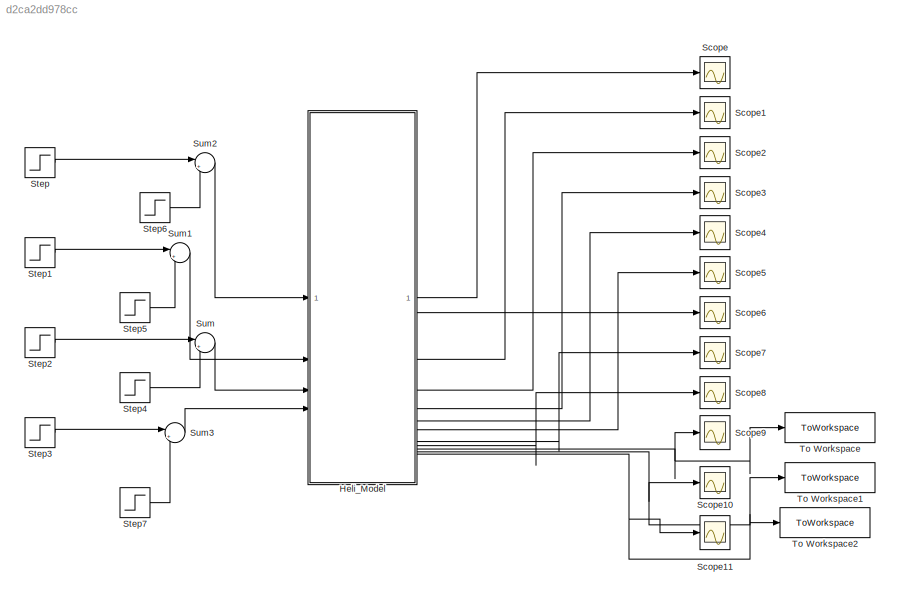
MODEL slx_d2ca2dd978cc
KIND model
CONFIG AbsTol = auto
CONFIG EnableMultiTasking = off
CONFIG FixedStep = auto
CONFIG MaxStep = auto
CONFIG MinStep = auto
CONFIG RelTol = 1e-3
CONFIG SampleTimeConstraint = Unconstrained
CONFIG SolverName = ode45
CONFIG StartTime = 0.0
CONFIG StopTime = 10
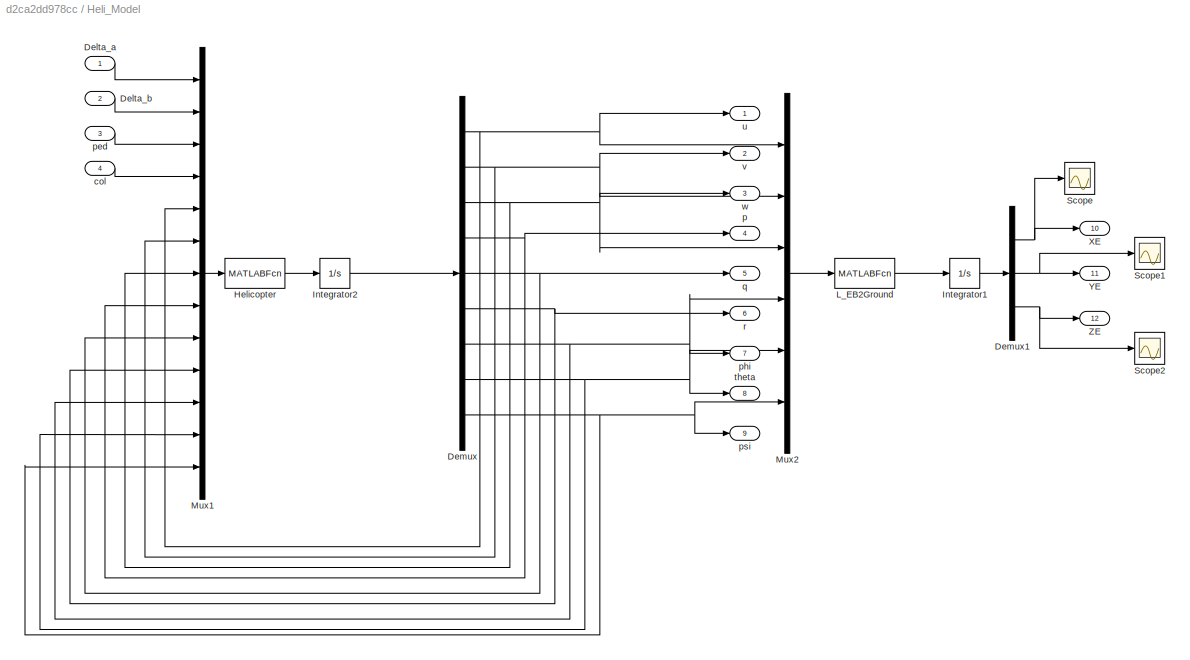
BLOCK [SubSystem] Heli_Model
BLOCK [Inport] Heli_Model/Delta_a
BLOCK [Inport] Heli_Model/Delta_b
  Port = 2
BLOCK [Demux] Heli_Model/Demux
  Outputs = 9
BLOCK [Demux] Heli_Model/Demux1
  Outputs = 3
BLOCK [MATLABFcn] Heli_Model/Helicopter
  MATLABFcn = F500Model
BLOCK [Integrator] Heli_Model/Integrator1
  InitialCondition = [20 10 20]
BLOCK [Integrator] Heli_Model/Integrator2
  InitialCondition = [0 0 0 0 0 0 0 0 0]
BLOCK [MATLABFcn] Heli_Model/L_EB2Ground
  MATLABFcn = L_EB2Ground
BLOCK [Mux] Heli_Model/Mux1
  DisplayOption = bar
  Inputs = 13
BLOCK [Mux] Heli_Model/Mux2
  DisplayOption = bar
  Inputs = 6
BLOCK [Scope] Heli_Model/Scope
  Floating = off
  NumInputPorts = 1
  ScopeSpecificationString = C++SS(StrPVP('Location','[5, 57, 1371, 735]'),StrPVP('Open','off'),MxPVP('AxesTitles',54,'struct(''axes1'',''%<SignalLabel>'')'),StrPVP('SaveName','ScopeData2'),StrPVP('DataFormat','StructureWithTime'),StrPVP('BlockParamSampleTime','0'),StrPVP('LimitDataPoints','on'),StrPVP('Decimation','1'),StrPVP('BlockParamSampleInput','off'))
BLOCK [Scope] Heli_Model/Scope1
  Floating = off
  NumInputPorts = 1
  ScopeSpecificationString = C++SS(StrPVP('Location','[5, 55, 1371, 733]'),StrPVP('Open','off'),MxPVP('AxesTitles',54,'struct(''axes1'',''%<SignalLabel>'')'),StrPVP('SaveName','ScopeData3'),StrPVP('DataFormat','StructureWithTime'),StrPVP('LimitDataPoints','off'),StrPVP('BlockParamSampleTime','0'),StrPVP('Decimation','1'),StrPVP('BlockParamSampleInput','off'))
BLOCK [Scope] Heli_Model/Scope2
  Floating = off
  NumInputPorts = 1
  ScopeSpecificationString = C++SS(StrPVP('Location','[5, 55, 1371, 733]'),StrPVP('Open','off'),MxPVP('AxesTitles',54,'struct(''axes1'',''%<SignalLabel>'')'),StrPVP('SaveName','ScopeData4'),StrPVP('DataFormat','StructureWithTime'),StrPVP('LimitDataPoints','off'),StrPVP('BlockParamSampleTime','0'),StrPVP('Decimation','1'),StrPVP('BlockParamSampleInput','off'))
BLOCK [Outport] Heli_Model/XE
  Port = 10
BLOCK [Outport] Heli_Model/YE
  Port = 11
BLOCK [Outport] Heli_Model/ZE
  Port = 12
BLOCK [Inport] Heli_Model/col
  Port = 4
BLOCK [Outport] Heli_Model/p
  Port = 4
BLOCK [Inport] Heli_Model/ped
  Port = 3
BLOCK [Outport] Heli_Model/phi
  Port = 7
BLOCK [Outport] Heli_Model/psi
  Port = 9
BLOCK [Outport] Heli_Model/q
  Port = 5
BLOCK [Outport] Heli_Model/r
  Port = 6
BLOCK [Outport] Heli_Model/theta
  Port = 8
BLOCK [Outport] Heli_Model/u
BLOCK [Outport] Heli_Model/v
  Port = 2
BLOCK [Outport] Heli_Model/w
  Port = 3
BLOCK [Scope] Scope
  Floating = off
  NumInputPorts = 1
  ScopeSpecificationString = Simulink.scopes.TimeScopeBlockCfg('CurrentConfiguration', extmgr.ConfigurationSet(extmgr.Configuration('Core','General UI',true),extmgr.Configuration('Core','Source UI',true),extmgr.Configuration('Sources','WiredSimulink',true,'DataLoggingVariableName','ScopeData1'),extmgr.Configuration('Visuals','Time Domain',true,'SerializedDisplays',{struct('MinYLimReal','-3.86322','MaxYLimReal','22.79817','YLa...<+1375ch>
BLOCK [Scope] Scope1
  Floating = off
  NumInputPorts = 1
  ScopeSpecificationString = Simulink.scopes.TimeScopeBlockCfg('CurrentConfiguration', extmgr.ConfigurationSet(extmgr.Configuration('Core','General UI',true),extmgr.Configuration('Core','Source UI',true),extmgr.Configuration('Sources','WiredSimulink',true,'DataLoggingVariableName','ScopeData2'),extmgr.Configuration('Visuals','Time Domain',true,'SerializedDisplays',{struct('MinYLimReal','-122.93705','MaxYLimReal','122.18196','...<+1385ch>
BLOCK [Scope] Scope10
  Floating = off
  NumInputPorts = 1
  ScopeSpecificationString = Simulink.scopes.TimeScopeBlockCfg('CurrentConfiguration', extmgr.ConfigurationSet(extmgr.Configuration('Core','General UI',true),extmgr.Configuration('Core','Source UI',true),extmgr.Configuration('Sources','WiredSimulink',true,'DataLoggingVariableName','ScopeData11'),extmgr.Configuration('Visuals','Time Domain',true,'SerializedDisplays',{struct('MinYLimReal','9.999999994','MaxYLimReal','10.0000000...<+1439ch>
BLOCK [Scope] Scope11
  Floating = off
  NumInputPorts = 1
  ScopeSpecificationString = Simulink.scopes.TimeScopeBlockCfg('CurrentConfiguration', extmgr.ConfigurationSet(extmgr.Configuration('Core','General UI',true),extmgr.Configuration('Core','Source UI',true),extmgr.Configuration('Sources','WiredSimulink',true,'DataLoggingVariableName','ScopeData12'),extmgr.Configuration('Visuals','Time Domain',true,'SerializedDisplays',{struct('MinYLimReal','-149.69045','MaxYLimReal','38.85449','...<+1416ch>
BLOCK [Scope] Scope2
  Floating = off
  NumInputPorts = 1
  ScopeSpecificationString = Simulink.scopes.TimeScopeBlockCfg('CurrentConfiguration', extmgr.ConfigurationSet(extmgr.Configuration('Core','General UI',true),extmgr.Configuration('Core','Source UI',true),extmgr.Configuration('Sources','WiredSimulink',true,'DataLoggingVariableName','ScopeData3'),extmgr.Configuration('Visuals','Time Domain',true,'SerializedDisplays',{struct('MinYLimReal','-122.46656','MaxYLimReal','122.38289','...<+1385ch>
BLOCK [Scope] Scope3
  Floating = off
  NumInputPorts = 1
  ScopeSpecificationString = Simulink.scopes.TimeScopeBlockCfg('CurrentConfiguration', extmgr.ConfigurationSet(extmgr.Configuration('Core','General UI',true),extmgr.Configuration('Core','Source UI',true),extmgr.Configuration('Sources','WiredSimulink',true,'DataLoggingVariableName','ScopeData4'),extmgr.Configuration('Visuals','Time Domain',true,'SerializedDisplays',{struct('MinYLimReal','-6.92317','MaxYLimReal','62.30855','YLa...<+1375ch>
BLOCK [Scope] Scope4
  Floating = off
  NumInputPorts = 1
  ScopeSpecificationString = Simulink.scopes.TimeScopeBlockCfg('CurrentConfiguration', extmgr.ConfigurationSet(extmgr.Configuration('Core','General UI',true),extmgr.Configuration('Core','Source UI',true),extmgr.Configuration('Sources','WiredSimulink',true,'DataLoggingVariableName','ScopeData5'),extmgr.Configuration('Visuals','Time Domain',true,'SerializedDisplays',{struct('MinYLimReal','-0.000000000008','MaxYLimReal','0.00000...<+1427ch>
BLOCK [Scope] Scope5
  Floating = off
  NumInputPorts = 1
  ScopeSpecificationString = Simulink.scopes.TimeScopeBlockCfg('CurrentConfiguration', extmgr.ConfigurationSet(extmgr.Configuration('Core','General UI',true),extmgr.Configuration('Core','Source UI',true),extmgr.Configuration('Sources','WiredSimulink',true,'DataLoggingVariableName','ScopeData6'),extmgr.Configuration('Visuals','Time Domain',true,'SerializedDisplays',{struct('MinYLimReal','-2.23779','MaxYLimReal','0.24864','YLab...<+1404ch>
BLOCK [Scope] Scope6
  Floating = off
  NumInputPorts = 1
  ScopeSpecificationString = Simulink.scopes.TimeScopeBlockCfg('CurrentConfiguration', extmgr.ConfigurationSet(extmgr.Configuration('Core','General UI',true),extmgr.Configuration('Core','Source UI',true),extmgr.Configuration('Sources','WiredSimulink',true,'DataLoggingVariableName','ScopeData7'),extmgr.Configuration('Visuals','Time Domain',true,'SerializedDisplays',{struct('MinYLimReal','-0.000000000004','MaxYLimReal','0.00000...<+1460ch>
BLOCK [Scope] Scope7
  Floating = off
  NameLocation = right
  NumInputPorts = 1
  ScopeSpecificationString = Simulink.scopes.TimeScopeBlockCfg('CurrentConfiguration', extmgr.ConfigurationSet(extmgr.Configuration('Core','General UI',true),extmgr.Configuration('Core','Source UI',true),extmgr.Configuration('Sources','WiredSimulink',true,'DataLoggingVariableName','ScopeData8'),extmgr.Configuration('Visuals','Time Domain',true,'SerializedDisplays',{struct('MinYLimReal','-0.000000000007','MaxYLimReal','0.00000...<+1458ch>
BLOCK [Scope] Scope8
  Floating = off
  NumInputPorts = 1
  ScopeSpecificationString = Simulink.scopes.TimeScopeBlockCfg('CurrentConfiguration', extmgr.ConfigurationSet(extmgr.Configuration('Core','General UI',true),extmgr.Configuration('Core','Source UI',true),extmgr.Configuration('Sources','WiredSimulink',true,'DataLoggingVariableName','ScopeData9'),extmgr.Configuration('Visuals','Time Domain',true,'SerializedDisplays',{struct('MinYLimReal','-11.35439','MaxYLimReal','1.2616','YLab...<+1406ch>
BLOCK [Scope] Scope9
  Floating = off
  NumInputPorts = 1
  ScopeSpecificationString = Simulink.scopes.TimeScopeBlockCfg('CurrentConfiguration', extmgr.ConfigurationSet(extmgr.Configuration('Core','General UI',true),extmgr.Configuration('Core','Source UI',true),extmgr.Configuration('Sources','WiredSimulink',true,'DataLoggingVariableName','ScopeData10'),extmgr.Configuration('Visuals','Time Domain',true,'SerializedDisplays',{struct('MinYLimReal','19.99999997','MaxYLimReal','20.0000002...<+1435ch>
BLOCK [Step] Step
  After = u1(1)
  Before = u1(1)
  SampleTime = 0
  Time = 0
BLOCK [Step] Step1
  After = u1(2)
  Before = u1(2)
  SampleTime = 0
  Time = 0
BLOCK [Step] Step2
  After = u1(3)
  Before = u1(3)
  SampleTime = 0
  Time = 0
BLOCK [Step] Step3
  After = u1(4)
  Before = u1(4)
  SampleTime = 0
  Time = 0
BLOCK [Step] Step4
  SampleTime = 0
  Time = 0
BLOCK [Step] Step5
  After = 0
  SampleTime = 0
  Time = 0
BLOCK [Step] Step6
  After = 0
  SampleTime = 0
  Time = 0
BLOCK [Step] Step7
  After = 0
  SampleTime = 0
  Time = 0
BLOCK [Sum] Sum
  Inputs = |++
BLOCK [Sum] Sum1
  Inputs = |++
BLOCK [Sum] Sum2
  Inputs = |++
BLOCK [Sum] Sum3
  Inputs = |++
BLOCK [ToWorkspace] To Workspace
  FixptAsFi = on
  MaxDataPoints = inf
  SampleTime = -1
  SaveFormat = Timeseries
  VariableName = X1
BLOCK [ToWorkspace] To Workspace1
  FixptAsFi = on
  MaxDataPoints = inf
  SampleTime = -1
  SaveFormat = Timeseries
  VariableName = Y1
BLOCK [ToWorkspace] To Workspace2
  FixptAsFi = on
  MaxDataPoints = inf
  SampleTime = -1
  SaveFormat = Timeseries
  VariableName = Z1
LINE Heli_Model/Delta_a:1 -> Heli_Model/Mux1:1
LINE Heli_Model/Delta_b:1 -> Heli_Model/Mux1:2
NET Heli_Model/Demux1:1 -> Heli_Model/Scope:1, Heli_Model/XE:1
NET Heli_Model/Demux1:2 -> Heli_Model/Scope1:1, Heli_Model/YE:1
NET Heli_Model/Demux1:3 -> Heli_Model/Scope2:1, Heli_Model/ZE:1
NET Heli_Model/Demux:1 -> Heli_Model/Mux1:5, Heli_Model/Mux2:1, Heli_Model/u:1
NET Heli_Model/Demux:2 -> Heli_Model/Mux1:6, Heli_Model/Mux2:2, Heli_Model/v:1
NET Heli_Model/Demux:3 -> Heli_Model/Mux1:7, Heli_Model/Mux2:3, Heli_Model/w:1
NET Heli_Model/Demux:4 -> Heli_Model/Mux1:8, Heli_Model/p:1
NET Heli_Model/Demux:5 -> Heli_Model/Mux1:9, Heli_Model/q:1
NET Heli_Model/Demux:6 -> Heli_Model/Mux1:10, Heli_Model/r:1
NET Heli_Model/Demux:7 -> Heli_Model/Mux1:11, Heli_Model/Mux2:4, Heli_Model/phi:1
NET Heli_Model/Demux:8 -> Heli_Model/Mux1:12, Heli_Model/Mux2:5, Heli_Model/theta:1
NET Heli_Model/Demux:9 -> Heli_Model/Mux1:13, Heli_Model/Mux2:6, Heli_Model/psi:1
LINE Heli_Model/Helicopter:1 -> Heli_Model/Integrator2:1
LINE Heli_Model/Integrator1:1 -> Heli_Model/Demux1:1
LINE Heli_Model/Integrator2:1 -> Heli_Model/Demux:1
LINE Heli_Model/L_EB2Ground:1 -> Heli_Model/Integrator1:1
LINE Heli_Model/Mux1:1 -> Heli_Model/Helicopter:1
LINE Heli_Model/Mux2:1 -> Heli_Model/L_EB2Ground:1
LINE Heli_Model/col:1 -> Heli_Model/Mux1:4
LINE Heli_Model/ped:1 -> Heli_Model/Mux1:3
LINE Heli_Model:1 -> Scope:1
NET Heli_Model:10 -> Scope9:1, To Workspace:1
NET Heli_Model:11 -> Scope10:1, To Workspace1:1
NET Heli_Model:12 -> Scope11:1, To Workspace2:1
LINE Heli_Model:2 -> Scope1:1
LINE Heli_Model:3 -> Scope2:1
LINE Heli_Model:4 -> Scope3:1
LINE Heli_Model:5 -> Scope4:1
LINE Heli_Model:6 -> Scope5:1
LINE Heli_Model:7 -> Scope6:1
LINE Heli_Model:8 -> Scope7:1
LINE Heli_Model:9 -> Scope8:1
LINE Step1:1 -> Sum1:1
LINE Step2:1 -> Sum:1
LINE Step3:1 -> Sum3:1
LINE Step4:1 -> Sum:2
LINE Step5:1 -> Sum1:2
LINE Step6:1 -> Sum2:2
LINE Step7:1 -> Sum3:2
LINE Step:1 -> Sum2:1
LINE Sum1:1 -> Heli_Model:2
LINE Sum2:1 -> Heli_Model:1
LINE Sum3:1 -> Heli_Model:4
LINE Sum:1 -> Heli_Model:3
note: NET lines group one-source signal fan-out (src -> all destinations, sorted); 1:1 wires keep LINE
